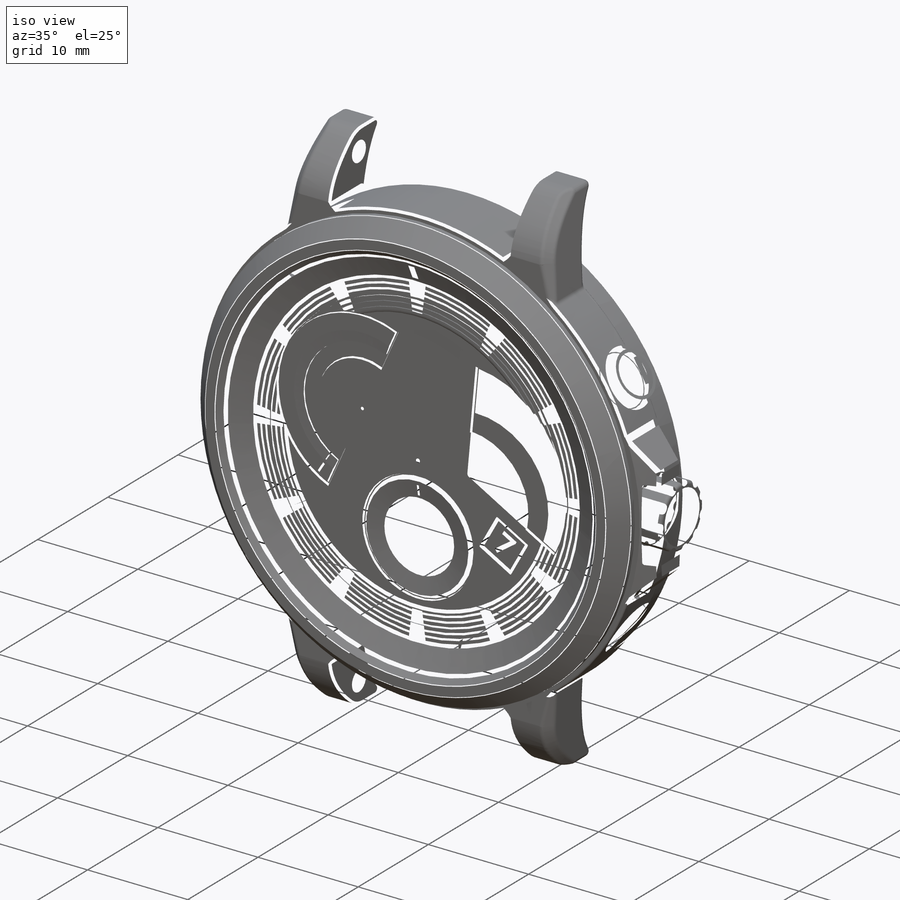
[diagram: iso view]
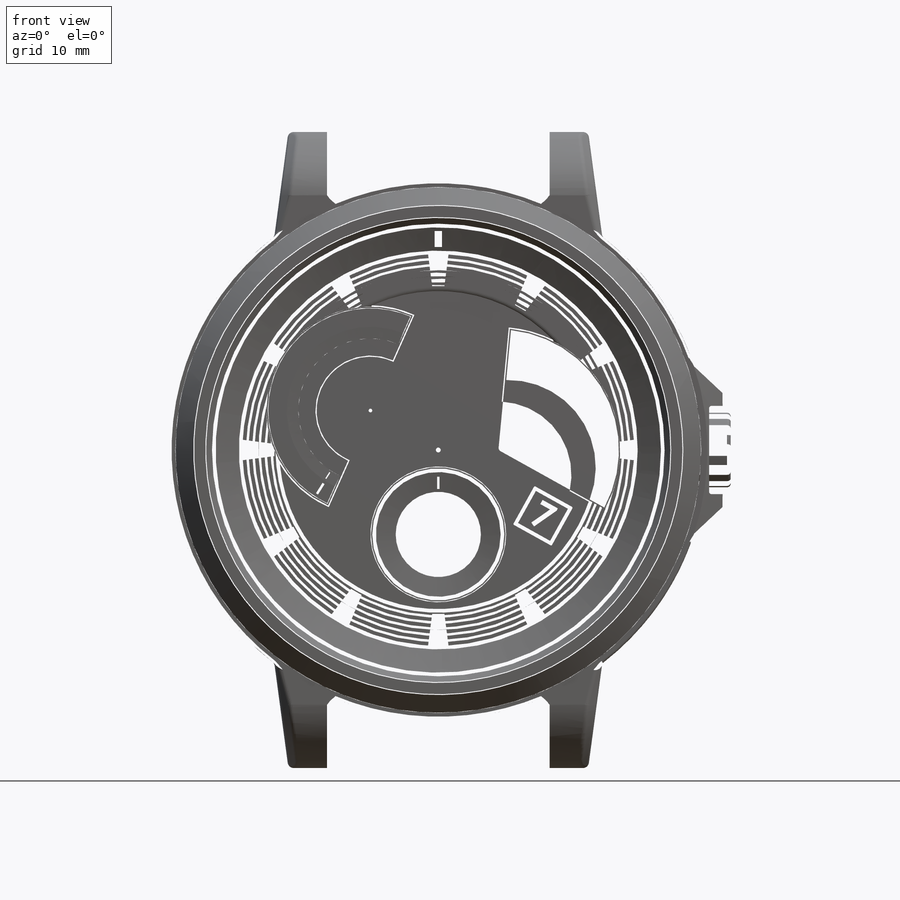
[diagram: front view]
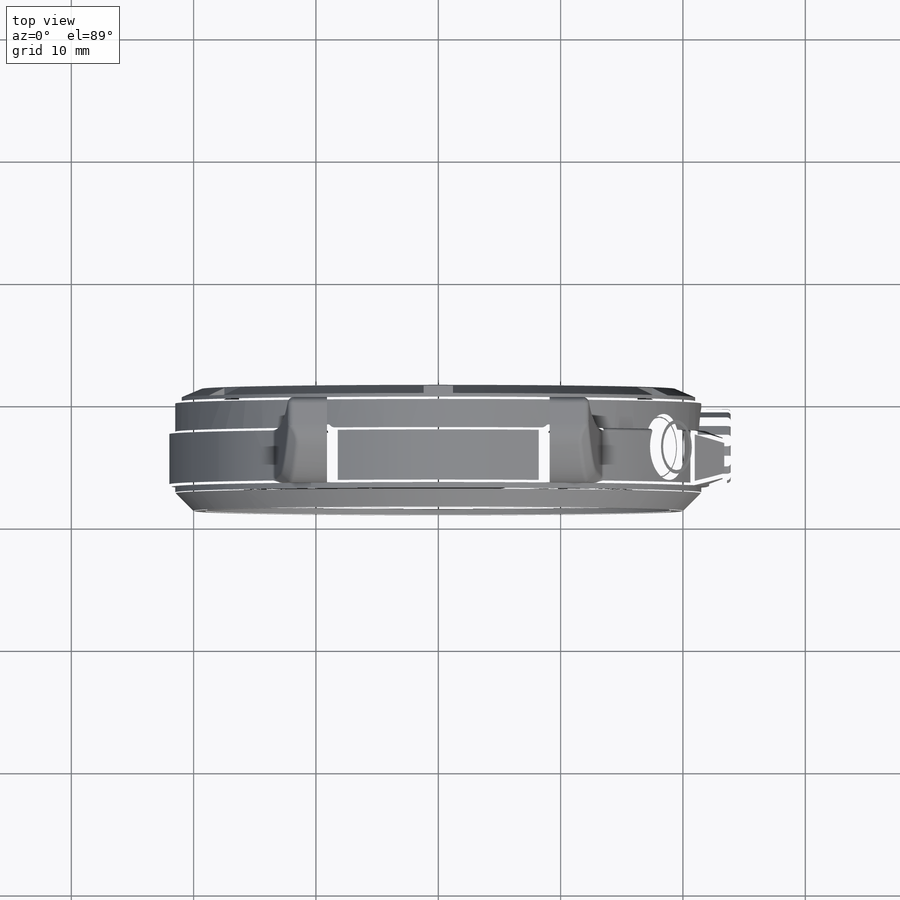
[diagram: top view]
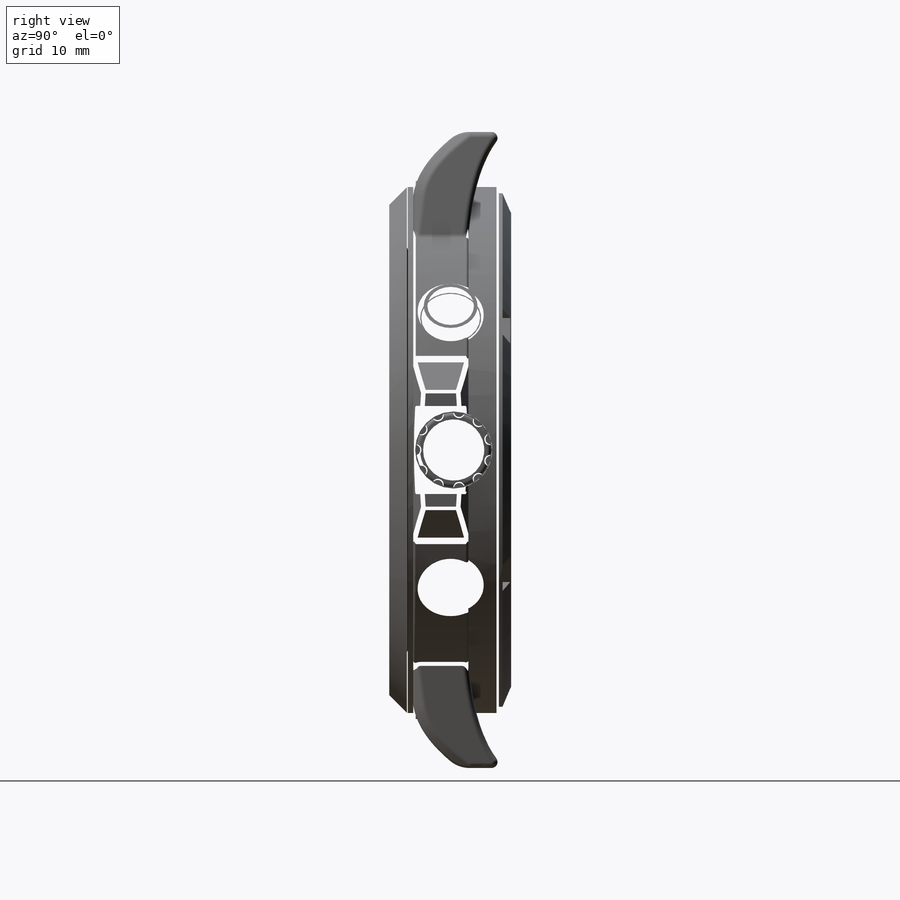
[diagram: right view]
SOLIDWORKS PART (.sldprt)
format: sldprt  version: not decoded by parser v0  size: 5,450,240 bytes
history: native  units: mm
features: sketch x49, fillet x25, cut_extrude x20, extrude x18, chamfer x13, pattern_circular x5, plane x5, mirror x3, cut_revolve x2, material x1 (+12 scaffold rows collapsed; 1 parser-record rows omitted)
feature tree (154):
  scaffold x12  (default folders/planes/origin — collapsed)
  material  "Материал <не указан>"
  sketch  "Эскиз1"  dims[D1=44.0mm]
  extrude  "Бобышка-Вытянуть1"  Depth=7mm
  sketch  "Эскиз3"  dims[D1=43.0mm]
  extrude  "Бобышка-Вытянуть2"  Depth=2mm
  sketch  "Эскиз4"  dims[D1=37.0mm]
  cut_extrude  "Вырез-Вытянуть1"  Depth=0.5mm
  chamfer  "Фаска1"  Distance=1.5mm Angle=45deg
  chamfer  "Фаска2"  Distance=0.5mm Angle=45deg
  sketch  "Эскиз5"  dims[D1=43.0mm]
  cut_extrude  "Вырез-Вытянуть2"  Depth=2.5mm
  sketch  "Эскиз6"  dims[D1=42.0mm]
  extrude  "Бобышка-Вытянуть3"  Depth=1mm
  chamfer  "Фаска3"  Distance=0.7mm Angle=67deg
  sketch  "Эскиз7"  dims[D1=1.47mm D2=1.2mm]
  cut_extrude  "Вырез-Вытянуть3"  Depth=0.7mm
  pattern_circular  "Круговой массив1"  Count=6 Angle=360deg
  plane  "Плоскость3"  Offset=26mm
  sketch  "Эскиз10"  dims[D1=~8.900773mm D2=~4.678168mm D3=4.5mm]
  extrude  "Бобышка-Вытянуть4"  Depth=0.7mm
  sketch  "Эскиз12"  dims[D1=3.0mm]
  extrude  "Бобышка-Вытянуть5"  [1 undecoded]
  sketch  "Эскиз14"
  cut_extrude  "Вырез-Вытянуть4"  [1 undecoded]
  mirror  "Зеркальное отражение1"
  sketch  "Эскиз15"  dims[D1=~1.147621mm]
  cut_extrude  "Вырез-Вытянуть5"  Depth=9.3mm
  chamfer  "Фаска7"  Distance=0.7mm Angle=45deg
  mirror  "Зеркальное отражение2"
  parser-record x1  (decoder bookkeeping rows leaked as tree rows — omitted from the tree; the rows remain in map.json)
  fillet  "Скругление1"  Radius=0.5mm
  fillet  "Скругление2"  Radius=2.5mm
  fillet  "Скругление3"  Radius=0.5mm
  fillet  "Скругление4"  Radius=0.5mm
  fillet  "Скругление5"  Radius=0.2mm
  fillet  "Скругление7"  Radius=0.5mm
  fillet  "Скругление8"  Radius=0.2mm
  fillet  "Скругление9"  Radius=0.1mm
  plane  "Плоскость4"  Offset=23.5mm
  sketch  "Эскиз16"  dims[D1=7.5mm]
  extrude  "Бобышка-Вытянуть6"  Depth=9.3mm
  chamfer  "Фаска8"  Distance=2.7mm Angle=47deg
  sketch  "Эскиз18"  dims[c1.D1=1.0mm c1.D2=1.5mm c2.D1=~1.802776mm]
  cut_revolve  "Вырез-Повернуть5"  Angle=45deg
  sketch  "Эскиз19"  dims[D1=1.3mm D2=1.3mm D3=1.3mm]
  cut_extrude  "Вырез-Вытянуть7"  Depth=9.3mm
  fillet  "Скругление11"  Radius=0.4mm
  fillet  "Скругление12"  Radius=1.4mm
  fillet  "Скругление13"  Radius=0.1mm
  sketch  "Эскиз21"  dims[D2=6.3mm D1=3.7mm]
  cut_extrude  "Вырез-Вытянуть8"  Depth=1mm
  sketch  "Эскиз22"  dims[D1=0.1mm]
  extrude  "Бобышка-Вытянуть8"  Depth=2.7mm
  sketch  "Эскиз23"  dims[D1=5.0mm]
  extrude  "Бобышка-Вытянуть9"  Depth=0.5mm
  fillet  "Скругление14"  Radius=5.1mm
  fillet  "Скругление16"  Radius=0.3mm
  sketch  "Эскиз24"  dims[c1.D2=~0.421398mm c1.D1=0.4mm c2.D2=~0.134135mm]
  cut_extrude  "Вырез-Вытянуть9"  [1 undecoded]
  pattern_circular  "Круговой массив2"  Count=11 Angle=360deg
  fillet  "Скругление17"  Radius=0.1mm
  sketch  "Эскиз25"
  cut_extrude  "Вырез-Вытянуть10"  Depth=0.2mm
  sketch  "Эскиз26"  dims[D1=2.2mm]
  cut_extrude  "Вырез-Вытянуть11"  Depth=1mm
  chamfer  "Фаска9"  Distance=1.9mm Angle=25deg
  sketch  "Эскиз27"  dims[D1=26.0mm]
  cut_extrude  "Вырез-Вытянуть12"  Depth=0.1mm
  fillet  "Скругление18"  Radius=0.5mm
  sketch  "Эскиз29"  dims[D1=0.5mm D2=0.2mm D3=0.09mm D5=0.3mm D6=0.09mm D4=6.0]
  cut_revolve  "Вырез-Повернуть6"  Angle=360deg
  sketch  "Эскиз30"  dims[c1.D1=16.1mm c1.D2=1.7mm c1.D3=0.5mm c1.D4=~2.703696mm c2.D4=~82.623941deg]
  extrude  "Бобышка-Вытянуть10"  Depth=0.3mm
  chamfer  "Фаска10"  Distance=0.2mm Angle=86deg
  chamfer  "Фаска12"  Distance=0.05mm Angle=58deg
  pattern_circular  "Круговой массив3"  Count=12 Angle=360deg
  plane  "Плоскость5"  Offset=10mm
  sketch  "Эскиз31"  dims[D1=17.0mm D3=~5.546503mm D4=~3.22532mm D5=~6.379086mm D2=4.0mm]
  cut_extrude  "Вырез-Вытянуть13"  Depth=3mm
  fillet  "Скругление20"  Radius=0.1mm
  fillet  "Скругление21"  Radius=0.05mm
  sketch  "Эскиз32"  dims[D1=0.1mm D2=2.5mm]
  extrude  "Бобышка-Вытянуть11"  Depth=0.2mm
  chamfer  "Фаска13"  Distance=0.05mm Angle=87deg
  fillet  "Скругление22"  Radius=0.05mm
  sketch  "Эскиз33"  dims[D1=0.6mm]
  pattern_circular  "Круговой массив6"  Count=12 Angle=360deg
  sketch  "Эскиз36"  dims[D1=11.0mm D2=6.9mm]
  cut_extrude  "Вырез-Вытянуть14"  Depth=0.2mm
  sketch  "Эскиз38"  dims[D1=0.1mm D2=2.0mm]
  extrude  "Бобышка-Вытянуть12"  Depth=0.3mm
  chamfer  "Фаска14"  Distance=0.3mm Angle=45deg
  fillet  "Скругление23"  Radius=0.05mm
  chamfer  "Фаска15"  Distance=0.3mm Angle=80deg
  sketch  "Эскиз40"  dims[c1.D1=~76.24925mm c2.D1=~35.000846deg]
  plane  "Плоскость6"
  plane  "Плоскость7"  Offset=25mm
  sketch  "Эскиз41"  dims[D1=5.0mm D2=4.0mm D3=~2.85398mm]
  cut_extrude  "Вырез-Вытянуть15"  Depth=4mm
  sketch  "Эскиз42"  dims[D1=0.1mm]
  extrude  "Бобышка-Вытянуть14"  Depth=1.7mm
  sketch  "Эскиз43"  dims[D1=3.8mm]
  extrude  "Бобышка-Вытянуть15"  Depth=1mm
  mirror  "Зеркальное отражение3"
  fillet  "Скругление24"  Radius=0.2mm
  fillet  "Скругление25"  Radius=0.4mm
  sketch  "Эскиз45"
  cut_extrude  "Вырез-Вытянуть16"  Depth=0.1mm
  fillet  "Скругление26"  Radius=0.1mm
  sketch  "Эскиз46"  dims[D1=0.4mm]
  cut_extrude  "Вырез-Вытянуть17"  Depth=0.1mm
  sketch  "Эскиз47"
  cut_extrude  "Вырез-Вытянуть18"  Depth=3mm
  sketch  "Эскиз48"  dims[D6=~7.150346mm D4=1.8mm D5=1.8mm D1=0.1mm D2=0.1mm D3=0.1mm]
  extrude  "Бобышка-Вытянуть16"  Depth=0.3mm
  chamfer  "Фаска16"  Distance=0.2mm Angle=72deg
  sketch  "Эскиз49"  dims[D1=3.0mm D2=4.5mm D3=~1.433083mm]
  cut_extrude  "Вырез-Вытянуть19"  Depth=0.1mm
  sketch  "Эскиз50"  dims[D1=0.0mm D2=0.3mm]
  extrude  "Бобышка-Вытянуть17"  Depth=0.2mm
  chamfer  "Фаска17"  Distance=0.1mm Angle=45deg
  fillet  "Скругление28"  Radius=0.1mm
  sketch  "Эскиз51"
  sketch  "Эскиз53"  dims[D2=0.3mm D1=0.3mm]
  extrude  "Бобышка-Вытянуть18"  Depth=0.1mm
  fillet  "Скругление29"  Radius=0.1mm
  sketch  "Эскиз54"  dims[D1=0.3mm]
  cut_extrude  "Вырез-Вытянуть20"  Depth=0.2mm
  sketch  "Эскиз55"  dims[c1.D1=~5.997032mm c2.D1=~8.193441deg c3.D1=1.4mm c3.D2=1.4mm c3.D3=1.4mm c3.D4=1.4mm c3.D5=1.4mm c3.D6=1.4mm c3.D7=1.4mm]
  sketch  "Эскиз56"  dims[D1=0.0mm]
  extrude  "Бобышка-Вытянуть19"  Depth=1.1mm
  sketch  "Эскиз57"  dims[c1.D1=~1.30611mm c2.D1=~4.696492deg c3.D1=~1.817349mm c4.D1=~7.120107deg c5.D1=1.2mm c5.D2=1.2mm c5.D3=1.5mm c5.D4=1.5mm c6.D1=1.5mm c6.D2=1.8mm c6.D3=1.8mm c6.D4=1.8mm c6.D5=~1.528065mm c6.D6=0.2mm c6.D7=1.0mm c6.D8=~16.687179mm]
  pattern_circular  "Круговой массив7"  Count=12 Angle=360deg
  sketch  "Эскиз58"  dims[D1=0.2mm D2=1.0mm D3=~3.711716mm]
  sketch  "Эскиз59"  dims[D1=0.2mm D2=1.0mm D3=~7.084879mm D4=0.2mm]
  sketch  "Эскиз60"  dims[D1=0.2mm]
  sketch  "Эскиз61"  dims[c1.D1=0.1mm c1.D2=6.09mm c1.D4=~0.562059mm c2.D4=~174.566667deg c3.D4=~0.475204mm c3.D2=0.475mm c3.D3=31.0]
  fillet  "Скругление30"  Radius=0.05mm
  sketch  "Эскиз64"  dims[D1=2.0mm D2=3.0mm D3=3.9mm]
  extrude  "Бобышка-Вытянуть20"  [1 undecoded]
  sketch  "Эскиз65"  dims[D1=30.0mm D2=0.2mm]
  cut_extrude  "Вырез-Вытянуть21"  Depth=0.1mm
decode coverage: 123 of 135 modeling features carry decoded parameters
note: ~ marks probable driven/reference dimensions
note: 4 parameter values undecoded
summary: no parameter record found for 4 features
note: suppression state not decoded; provenance and decode notes live in map.json
